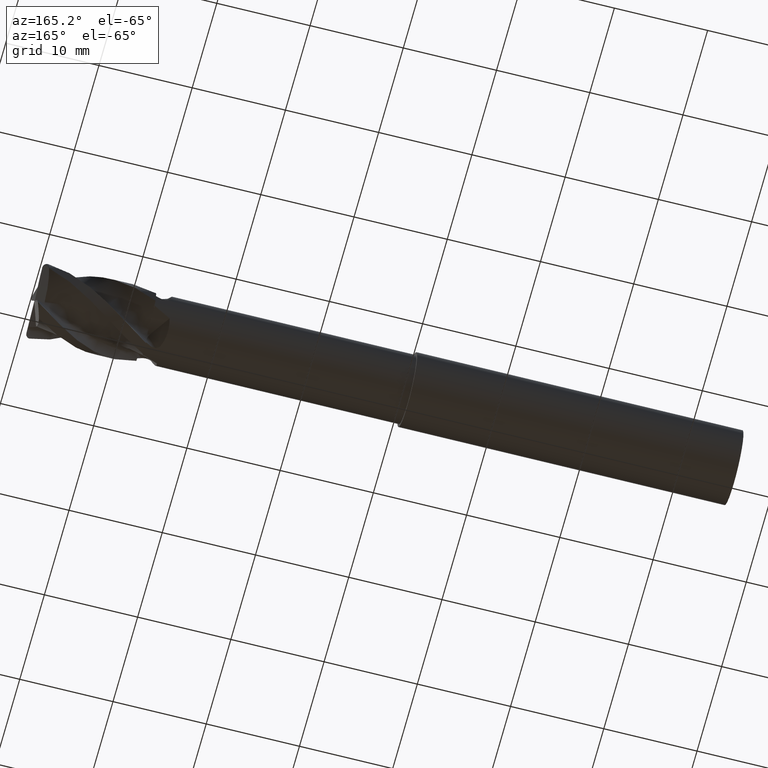
[diagram: clean part render]
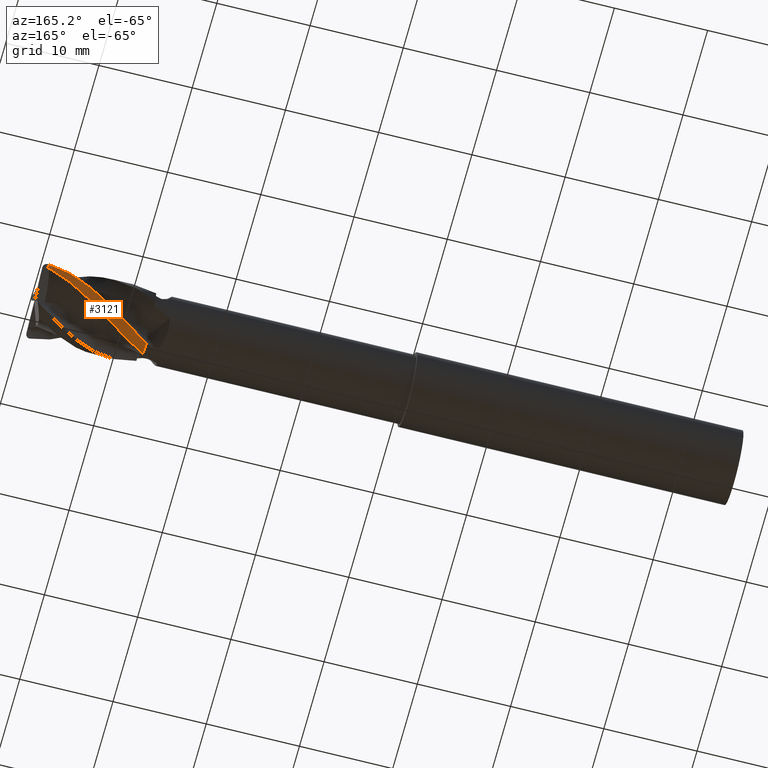
[diagram: same view with one face highlighted and labeled with its STEP entity id]
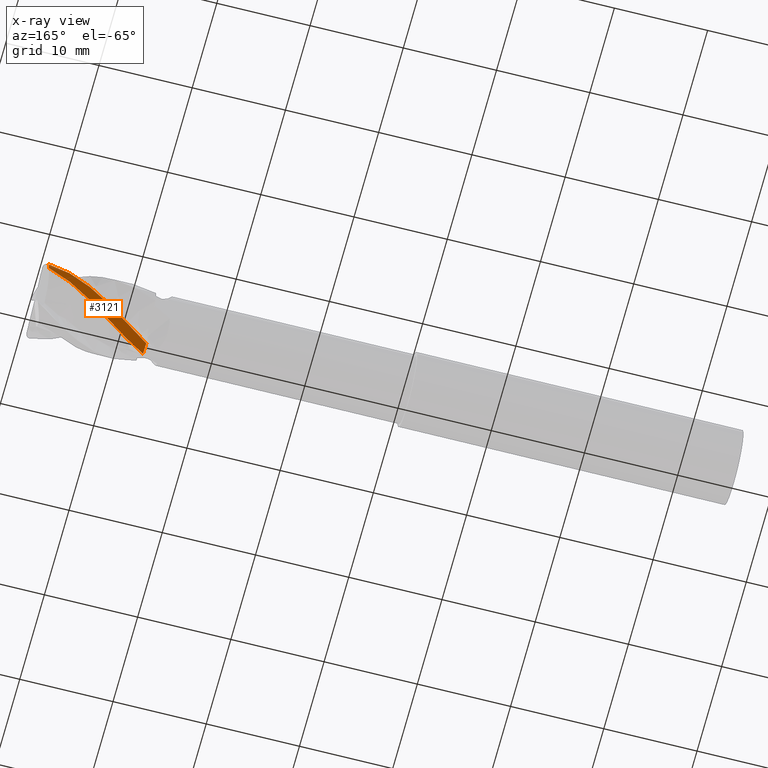
[diagram: x-ray of the same camera — body ghosted, the highlighted face saturated]
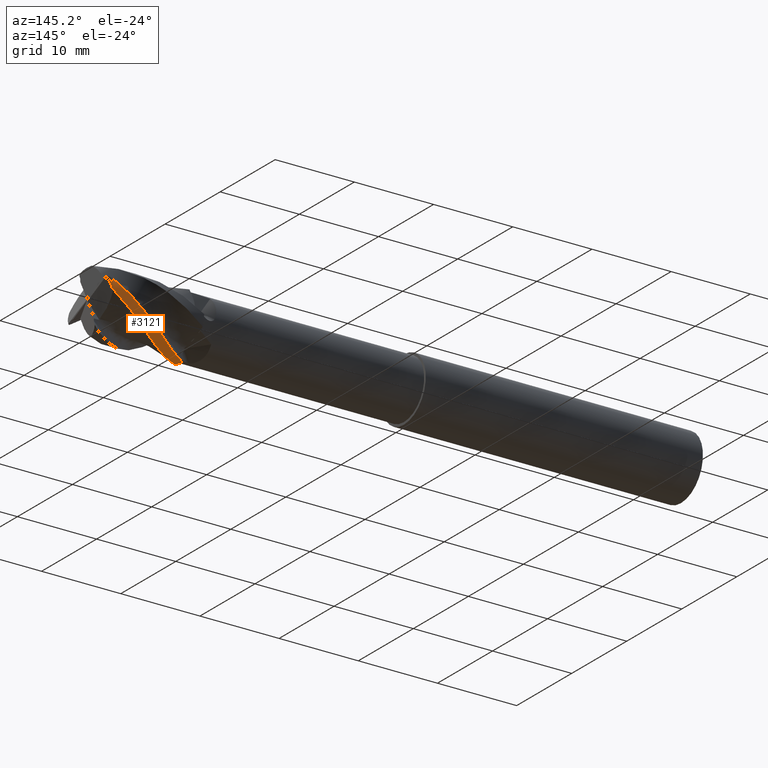
[diagram: same view with one face highlighted and labeled with its STEP entity id]
A machine part, auxiliary view. The second image highlights one B-rep face of the part: STEP entity #3121.
The next image is the same camera in x-ray: the body ghosted, the highlighted face saturated — about 0% of this face is hidden behind the body in this view.
A second angle (auxiliary view) of the same face is appended — the face is thin or edge-on in the first view.
In plain terms, the highlighted cylindrical surface (partial cylindrical patch) has radius 4 mm, axis along (-1, -0, -0).
Its self-contained STEP definition (entity closure, byte-faithful):
#502 = CARTESIAN_POINT ( 'NONE',  ( 38.50000000000000700, 0.0000000000000000000, 0.0000000000000000000 ) ) ;
#503 = DIRECTION ( 'NONE',  ( -1.000000000000000000, -0.0000000000000000000, -0.0000000000000000000 ) ) ;
#504 = DIRECTION ( 'NONE',  ( 0.0000000000000000000, 0.0000000000000000000, 1.000000000000000000 ) ) ;
#700 = CARTESIAN_POINT ( 'NONE',  ( 27.00000000000000700, 2.338667723742084800E-014, -4.000000000000016900 ) ) ;
#705 = CARTESIAN_POINT ( 'NONE',  ( 27.96652853540460600, 0.6369699328927435100, -4.000000000000014200 ) ) ;
#706 = CARTESIAN_POINT ( 'NONE',  ( 28.91395416687838700, 1.261004516013355400, -3.848462321486522800 ) ) ;
#707 = CARTESIAN_POINT ( 'NONE',  ( 30.35502961638266600, 2.106102629648413800, -3.415337519296594700 ) ) ;
#708 = CARTESIAN_POINT ( 'NONE',  ( 30.83914676709212800, 2.372594666363119700, -3.235754128552830600 ) ) ;
#709 = CARTESIAN_POINT ( 'NONE',  ( 31.79549361897527500, 2.850028528779422900, -2.824295950576852600 ) ) ;
#710 = CARTESIAN_POINT ( 'NONE',  ( 32.27106461047944900, 3.063105434383526200, -2.591558142405324400 ) ) ;
#711 = CARTESIAN_POINT ( 'NONE',  ( 33.22481284981935800, 3.430285055941082500, -2.081329609313363500 ) ) ;
#712 = CARTESIAN_POINT ( 'NONE',  ( 33.70370724942877400, 3.584538295259427400, -1.803424792785941000 ) ) ;
#713 = CARTESIAN_POINT ( 'NONE',  ( 34.66955246158185100, 3.824581095954393100, -1.214016150586424200 ) ) ;
#714 = CARTESIAN_POINT ( 'NONE',  ( 35.14729483478510000, 3.908193992156868900, -0.9081485441808354600 ) ) ;
#715 = CARTESIAN_POINT ( 'NONE',  ( 36.10067931748054100, 4.002055349057623200, -0.2868223173117469500 ) ) ;
#716 = CARTESIAN_POINT ( 'NONE',  ( 36.57634002117775700, 4.012310130353339100, 0.02860698187068384100 ) ) ;
#717 = CARTESIAN_POINT ( 'NONE',  ( 37.53341680825664600, 3.958256879248262200, 0.6570033633335343700 ) ) ;
#718 = CARTESIAN_POINT ( 'NONE',  ( 38.01673100552911700, 3.893351899975134400, 0.9712053969893820200 ) ) ;
#719 = CARTESIAN_POINT ( 'NONE',  ( 38.49999999999997900, 3.791986172461931900, 1.273122487374905900 ) ) ;
#845 = CARTESIAN_POINT ( 'NONE',  ( 26.99999999999999600, 0.0000000000000000000, 0.0000000000000000000 ) ) ;
#846 = DIRECTION ( 'NONE',  ( -1.000000000000000000, -0.0000000000000000000, -0.0000000000000000000 ) ) ;
#847 = DIRECTION ( 'NONE',  ( 0.0000000000000000000, 0.0000000000000000000, 1.000000000000000000 ) ) ;
#1907 = CARTESIAN_POINT ( 'NONE',  ( 38.50000000000000700, 3.999755679567437800, -0.04420977005336654300 ) ) ;
#1908 = CARTESIAN_POINT ( 'NONE',  ( 38.49521304430739100, 3.999571692504923600, -0.06085548654020352100 ) ) ;
#1921 = CARTESIAN_POINT ( 'NONE',  ( 38.49043943121301200, 3.999283799076089400, -0.07749973016894863600 ) ) ;
#1987 = CARTESIAN_POINT ( 'NONE',  ( 38.48567934673734200, 3.998892010499712800, -0.09414185233863296700 ) ) ;
#2026 = CARTESIAN_POINT ( 'NONE',  ( 38.48567934673734200, 3.998892010499712800, -0.09414185233863296700 ) ) ;
#2178 = EDGE_LOOP ( 'NONE', ( #4175, #4081, #3950, #4183, #3964 ) ) ;
#2250 = B_SPLINE_CURVE_WITH_KNOTS ( 'NONE', 3,
 ( #2026, #3479, #3487, #3602, #3606, #3682, #3540, #3451, #3578, #3683, #3681, #3684, #3680, #3679, #3677, #3675, #3668, #3667, #3671, #3670, #3669, #3672, #3674, #3673, #3666, #3665, #3663, #3664 ),
 .UNSPECIFIED., .F., .F.,
 ( 4, 2, 2, 2, 2, 2, 2, 2, 2, 2, 2, 2, 2, 4 ),
 ( 1.700687214540962600E-005, 0.001727685240817121100, 0.002583024425152968100, 0.003438363609488815200, 0.004293702793824662200, 0.005149041978160508400, 0.006859720346832202400, 0.007715059531168057300, 0.008570398715503914700, 0.01028107708417561400, 0.01113641626851146600, 0.01199175545284731700, 0.01284709463718316900, 0.01370243382151901900 ),
 .UNSPECIFIED. ) ;
#2269 = AXIS2_PLACEMENT_3D ( 'NONE', #4804, #4803, #4794 ) ;
#2283 = EDGE_CURVE ( 'NONE', #3139, #3368, #2250, .T. ) ;
#2306 = AXIS2_PLACEMENT_3D ( 'NONE', #502, #503, #504 ) ;
#2340 = EDGE_CURVE ( 'NONE', #3139, #3177, #4330, .T. ) ;
#2420 = EDGE_CURVE ( 'NONE', #3182, #3177, #4235, .T. ) ;
#2421 = AXIS2_PLACEMENT_3D ( 'NONE', #845, #846, #847 ) ;
#2471 = EDGE_CURVE ( 'NONE', #3401, #3182, #2500, .T. ) ;
#2500 = B_SPLINE_CURVE_WITH_KNOTS ( 'NONE', 3,
 ( #700, #705, #706, #707, #708, #709, #710, #711, #712, #713, #714, #715, #716, #717, #718, #719 ),
 .UNSPECIFIED., .F., .F.,
 ( 4, 2, 2, 2, 2, 2, 2, 4 ),
 ( 0.0000000000000000000, 0.003432143207012751000, 0.005148214810519130900, 0.006864286414025511600, 0.008580358017531892300, 0.01029642962103827000, 0.01201250122454465200, 0.01372857282805103200 ),
 .UNSPECIFIED. ) ;
#2523 = EDGE_CURVE ( 'NONE', #3401, #3368, #4257, .T. ) ;
#3121 = ADVANCED_FACE ( 'NONE', ( #4231 ), #4228, .T. ) ;
#3139 = VERTEX_POINT ( 'NONE', #4837 ) ;
#3177 = VERTEX_POINT ( 'NONE', #4850 ) ;
#3182 = VERTEX_POINT ( 'NONE', #4853 ) ;
#3368 = VERTEX_POINT ( 'NONE', #4912 ) ;
#3401 = VERTEX_POINT ( 'NONE', #4924 ) ;
#3451 = CARTESIAN_POINT ( 'NONE',  ( 35.38339540606044400, 3.441512052839263100, -2.044851559045666200 ) ) ;
#3479 = CARTESIAN_POINT ( 'NONE',  ( 38.00559130361434500, 3.991360861165046600, -0.4140447664636266500 ) ) ;
#3487 = CARTESIAN_POINT ( 'NONE',  ( 37.53266347156723300, 3.944325838401681500, -0.7331616070256680200 ) ) ;
#3540 = CARTESIAN_POINT ( 'NONE',  ( 35.86013891471424100, 3.593356001527963100, -1.764430716875103700 ) ) ;
#3578 = CARTESIAN_POINT ( 'NONE',  ( 35.14317268869750400, 3.356678525736903000, -2.181169390554468000 ) ) ;
#3602 = CARTESIAN_POINT ( 'NONE',  ( 36.81313672469657000, 3.824976797697942700, -1.180406947813930100 ) ) ;
#3606 = CARTESIAN_POINT ( 'NONE',  ( 36.57358157226931200, 3.776647036319747300, -1.327293313980155500 ) ) ;
#3663 = CARTESIAN_POINT ( 'NONE',  ( 27.24202060400591200, -1.205778247796972100, -3.817166122542559900 ) ) ;
#3664 = CARTESIAN_POINT ( 'NONE',  ( 26.99999999999999600, -1.353544538484295000, -3.764029381173780400 ) ) ;
#3665 = CARTESIAN_POINT ( 'NONE',  ( 27.48549131899834600, -1.058904046875252000, -3.860493171065162000 ) ) ;
#3666 = CARTESIAN_POINT ( 'NONE',  ( 27.96581156024048900, -0.7528370308691269000, -3.931656356967338200 ) ) ;
#3667 = CARTESIAN_POINT ( 'NONE',  ( 30.83935072656022700, 1.137657596232731100, -3.848038137860784900 ) ) ;
#3668 = CARTESIAN_POINT ( 'NONE',  ( 31.56025842219894900, 1.584076570409557200, -3.676427205624216200 ) ) ;
#3669 = CARTESIAN_POINT ( 'NONE',  ( 29.39593121490148400, 0.2021825345199049500, -3.998061906555268100 ) ) ;
#3670 = CARTESIAN_POINT ( 'NONE',  ( 29.63851399332359200, 0.3587890438727486800, -3.986941134020010900 ) ) ;
#3671 = CARTESIAN_POINT ( 'NONE',  ( 30.36388831830962000, 0.8237999664457178500, -3.926712410128756000 ) ) ;
#3672 = CARTESIAN_POINT ( 'NONE',  ( 28.91711411928465500, -0.1164010067317711600, -4.001478175817665000 ) ) ;
#3673 = CARTESIAN_POINT ( 'NONE',  ( 28.20381593552193100, -0.5953134296346015400, -3.958689736694657800 ) ) ;
#3674 = CARTESIAN_POINT ( 'NONE',  ( 28.67945847085528400, -0.2770819810379414600, -3.993600892264900900 ) ) ;
#3675 = CARTESIAN_POINT ( 'NONE',  ( 31.80054149945678400, 1.728005737533098200, -3.610806587097873200 ) ) ;
#3677 = CARTESIAN_POINT ( 'NONE',  ( 32.28199999605869400, 2.001700199935239500, -3.466572420699721000 ) ) ;
#3679 = CARTESIAN_POINT ( 'NONE',  ( 32.52174950540604200, 2.134204288465194800, -3.386725922751178300 ) ) ;
#3680 = CARTESIAN_POINT ( 'NONE',  ( 33.23401114048500900, 2.523228365220389500, -3.119660285976499000 ) ) ;
#3681 = CARTESIAN_POINT ( 'NONE',  ( 34.41990841472825500, 3.079090926870947000, -2.558059957598783000 ) ) ;
#3682 = CARTESIAN_POINT ( 'NONE',  ( 36.09749928073208700, 3.660684196006745800, -1.619926416657743600 ) ) ;
#3683 = CARTESIAN_POINT ( 'NONE',  ( 34.66176384190778500, 3.174845465695102400, -2.438267192985681000 ) ) ;
#3684 = CARTESIAN_POINT ( 'NONE',  ( 33.70338541206601900, 2.765316420805316700, -2.907045204887793900 ) ) ;
#3950 = ORIENTED_EDGE ( 'NONE', *, *, #2523, .F. ) ;
#3964 = ORIENTED_EDGE ( 'NONE', *, *, #2420, .T. ) ;
#4081 = ORIENTED_EDGE ( 'NONE', *, *, #2283, .T. ) ;
#4175 = ORIENTED_EDGE ( 'NONE', *, *, #2340, .F. ) ;
#4183 = ORIENTED_EDGE ( 'NONE', *, *, #2471, .T. ) ;
#4228 = CYLINDRICAL_SURFACE ( 'NONE', #2269, 4.000000000000017800 ) ;
#4231 = FACE_OUTER_BOUND ( 'NONE', #2178, .T. ) ;
#4235 = CIRCLE ( 'NONE', #2306, 4.000000000000019500 ) ;
#4257 = CIRCLE ( 'NONE', #2421, 4.000000000000016900 ) ;
#4330 =( BOUNDED_CURVE ( )  B_SPLINE_CURVE ( 3, ( #1987, #1921, #1908, #1907 ),
 .UNSPECIFIED., .F., .T. ) 
 B_SPLINE_CURVE_WITH_KNOTS ( ( 4, 4 ),
 ( 1.140973089474817100, 1.153458058340478300 ),
 .UNSPECIFIED. ) 
 CURVE ( )  GEOMETRIC_REPRESENTATION_ITEM ( )  RATIONAL_B_SPLINE_CURVE ( ( 1.000000000000000000, 0.9999870105048838100, 0.9999870105048838100, 1.000000000000000000 ) ) 
 REPRESENTATION_ITEM ( '' )  );
#4794 = DIRECTION ( 'NONE',  ( 0.0000000000000000000, 0.0000000000000000000, 1.000000000000000000 ) ) ;
#4803 = DIRECTION ( 'NONE',  ( -1.000000000000000000, -0.0000000000000000000, -0.0000000000000000000 ) ) ;
#4804 = CARTESIAN_POINT ( 'NONE',  ( -39.76065438357068200, 0.0000000000000000000, 0.0000000000000000000 ) ) ;
#4837 = CARTESIAN_POINT ( 'NONE',  ( 38.48567934673734200, 3.998892010499712800, -0.09414185233863296700 ) ) ;
#4850 = CARTESIAN_POINT ( 'NONE',  ( 38.50000000000000700, 3.999755679567437800, -0.04420977005336654300 ) ) ;
#4853 = CARTESIAN_POINT ( 'NONE',  ( 38.49999999999997900, 3.791986172461931900, 1.273122487374905900 ) ) ;
#4912 = CARTESIAN_POINT ( 'NONE',  ( 26.99999999999999600, -1.353544538484295000, -3.764029381173780400 ) ) ;
#4924 = CARTESIAN_POINT ( 'NONE',  ( 27.00000000000000700, 2.338667723742084800E-014, -4.000000000000016900 ) ) ;